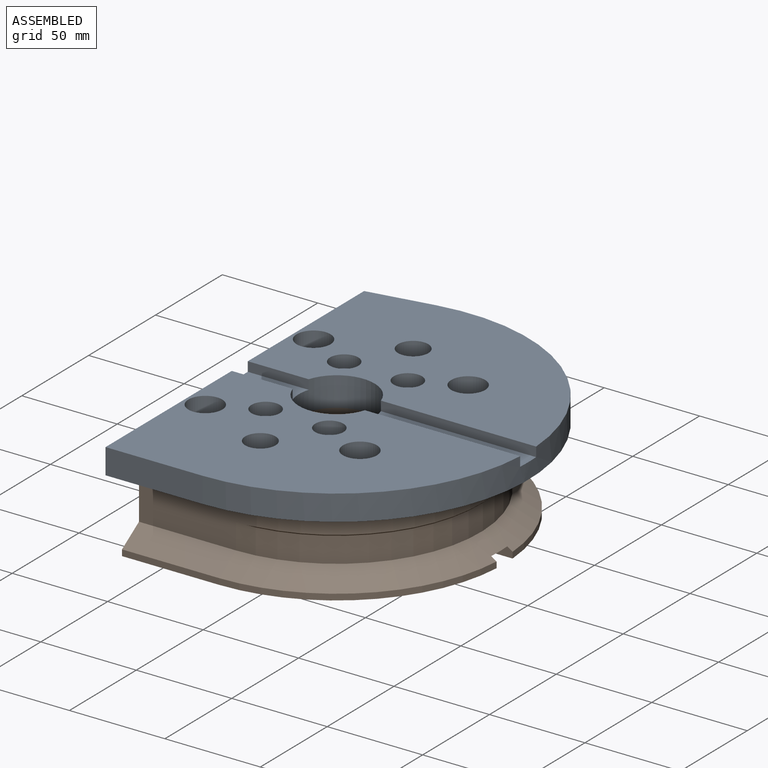
[diagram: assembled view]
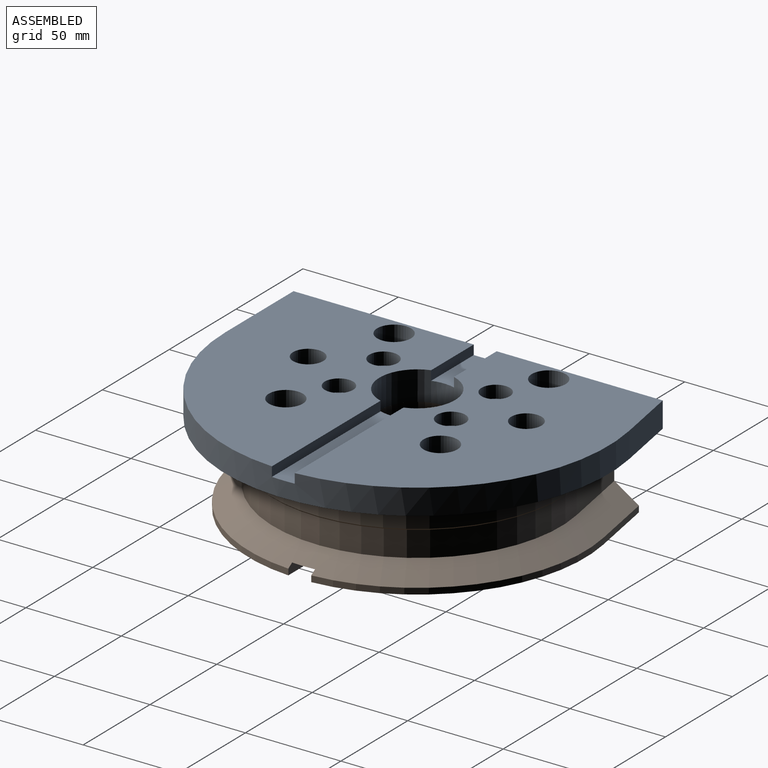
[diagram: assembled view, second angle]
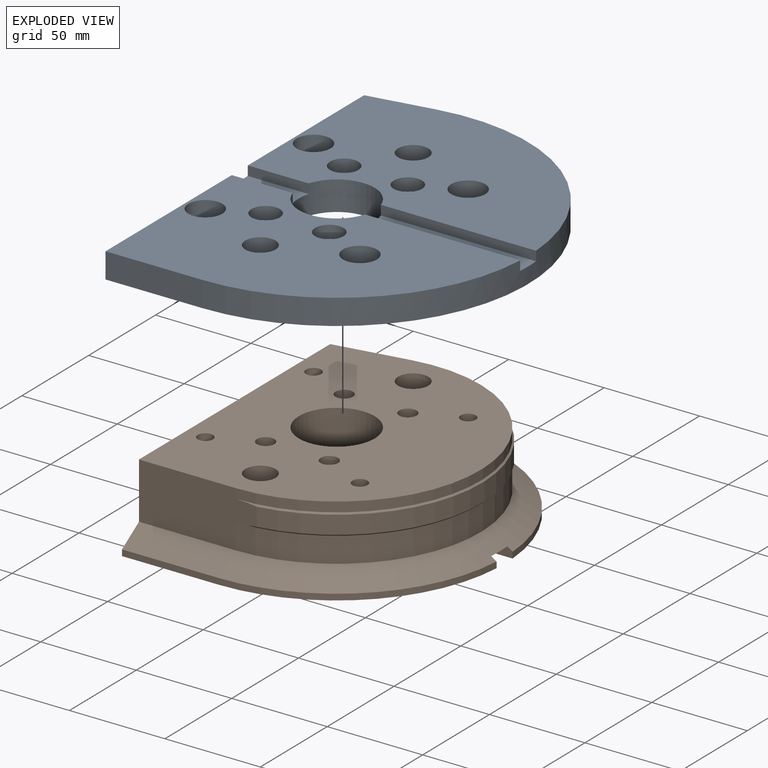
[diagram: exploded view]
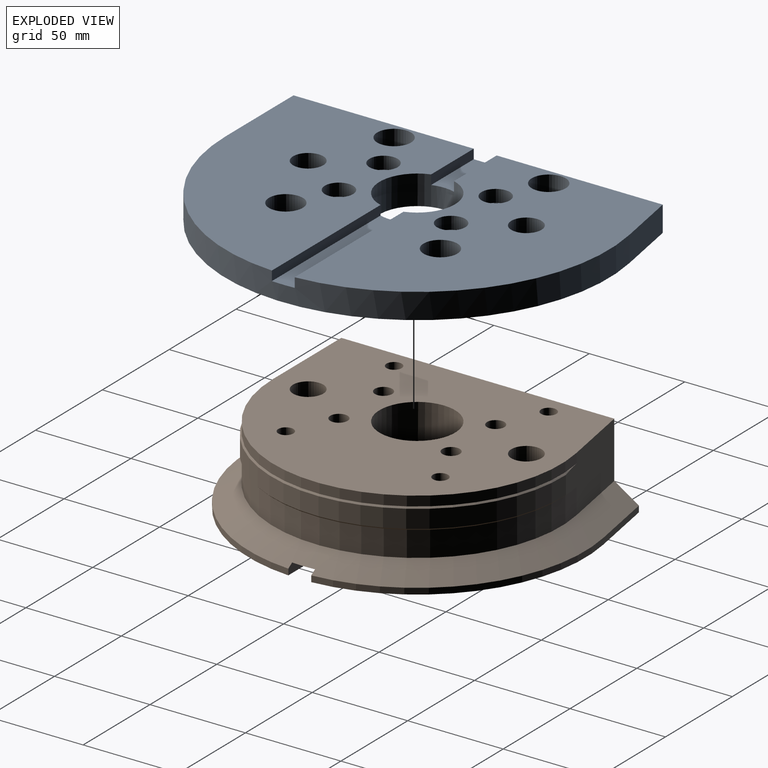
[diagram: exploded view, second angle]
ASSEMBLY  parts=2 mates=2
PART A: 44 faces, bbox 151.2x200.8x15.4 mm
  f0: cylinder r=4.56mm len=9.12mm, axis (0,0,1), area 252.5mm2, adj f15,f42
  f1: cylinder r=4.56mm len=9.12mm, axis (0,0,1), area 252.5mm2, adj f15,f40
  f2: cylinder r=4.56mm len=9.12mm, axis (0,0,1), area 252.5mm2, adj f15,f38
  f3: cylinder r=4.56mm len=9.12mm, axis (0,0,1), area 252.5mm2, adj f15,f36
  f4: cylinder r=5.58mm len=11.15mm, axis (0,0,1), area 184.2mm2, adj f15,f34
  f5: cylinder r=5.58mm len=11.15mm, axis (0,0,1), area 184.2mm2, adj f15,f32
  f6: cylinder r=5.58mm len=11.15mm, axis (0,0,1), area 184.2mm2, adj f15,f30
  f7: cylinder r=5.58mm len=11.15mm, axis (0,0,1), area 184.2mm2, adj f15,f28
  f8: plane 193.4x15.42mm, normal (-1,0,0), area 2818.2mm2, adj f11,f12,f13,f14,f15,f18,f19,f21
  f9: cylinder r=100.41mm len=200.81mm, axis (0,0,-1), area 4388.4mm2, adj f11,f12,f13,f14,f19,f25,f26,f27
  f10: cylinder r=19.85mm len=39.7mm, axis (0,0,-1), area 1801.1mm2, adj f11,f14,f15,f22,f23,f24,f25,f26
  f11: plane 151.03x94.41mm, normal (0,0,1), area 10687.8mm2, adj f8,f9,f10,f12,f17,f23,f26,f31
  f12: plane 50.8x13.36mm, normal (0,-1,0), area 678.7mm2, adj f8,f9,f11,f19
  f13: plane 33.36x13.36mm, normal (-0.17,0.98,0), area 452.6mm2, adj f8,f9,f14,f19
  f14: plane 151.03x94.41mm, normal (0,0,1), area 10529.9mm2, adj f8,f9,f10,f13,f16,f22,f27,f29
  f15: plane 150.83x126.21mm, normal (0,0,-1), area 14136mm2, adj f0,f1,f2,f3,f4,f5,f6,f7
  f16: cylinder r=7.94mm len=15.88mm, axis (0,0,1), area 768.9mm2, adj f14,f15
  f17: cylinder r=7.94mm len=15.88mm, axis (0,0,1), area 768.9mm2, adj f11,f15
  f18: plane 50.8x2.06mm, normal (0,-1,0), area 104.5mm2, adj f8,f15,f19,f20
  f19: plane 200.81x151.21mm, normal (0,0,-1), area 9457.6mm2, adj f8,f9,f12,f13,f18,f20,f21
  f20: cylinder r=75.41mm len=150.83mm, axis (0,0,1), area 514.5mm2, adj f15,f18,f19,f21
  f21: plane 37.7x6.65mm, normal (-0.17,0.98,0), area 78.8mm2, adj f8,f15,f19,f20
  f22: plane 31.88x5mm, normal (0,-1,0), area 159.5mm2, adj f8,f10,f14,f24
  f23: plane 31.88x5mm, normal (0,1,0), area 159.5mm2, adj f8,f10,f11,f24
  f24: plane 31.88x11.99mm, normal (0,0,1), area 374.7mm2, adj f8,f10,f22,f23
  f25: plane 81.48x11.99mm, normal (0,0,1), area 968.7mm2, adj f9,f10,f26,f27
  f26: plane 81.3x5mm, normal (0,1,0), area 406.8mm2, adj f9,f10,f11,f25
  f27: plane 81.3x5mm, normal (0,-1,0), area 406.8mm2, adj f9,f10,f14,f25
  f28: plane 17.78x17.78mm, normal (0,0,1), area 150.6mm2, adj f7,f29
  f29: cylinder r=8.89mm len=17.78mm, axis (0,0,1), area 567.5mm2, adj f14,f28
  f30: plane 17.78x17.78mm, normal (0,0,1), area 150.6mm2, adj f6,f31
  f31: cylinder r=8.89mm len=17.78mm, axis (0,0,1), area 567.5mm2, adj f11,f30
  f32: plane 17.78x17.78mm, normal (0,0,1), area 150.6mm2, adj f5,f33
  f33: cylinder r=8.89mm len=17.78mm, axis (0,0,1), area 567.5mm2, adj f14,f32
  f34: plane 17.78x17.78mm, normal (0,0,1), area 150.6mm2, adj f4,f35
  f35: cylinder r=8.89mm len=17.78mm, axis (0,0,1), area 567.5mm2, adj f11,f34
  f36: plane 14.83x14.83mm, normal (0,0,1), area 107.5mm2, adj f3,f37
  f37: cylinder r=7.42mm len=14.83mm, axis (0,0,1), area 307.8mm2, adj f11,f36
  f38: plane 14.83x14.83mm, normal (0,0,1), area 107.5mm2, adj f2,f39
  f39: cylinder r=7.42mm len=14.83mm, axis (0,0,1), area 307.8mm2, adj f11,f38
  f40: plane 14.83x14.83mm, normal (0,0,1), area 107.5mm2, adj f1,f41
  f41: cylinder r=7.42mm len=14.83mm, axis (0,0,1), area 307.8mm2, adj f14,f40
  f42: plane 14.83x14.83mm, normal (0,0,1), area 107.5mm2, adj f0,f43
  f43: cylinder r=7.42mm len=14.83mm, axis (0,0,1), area 307.8mm2, adj f14,f42
PART B: 35 faces, bbox 138.9x176.2x40.9 mm
  f0: plane 138.71x82.12mm, normal (0,0,-1), area 8763.6mm2, adj f1,f3,f4,f6,f19,f21,f24,f25
  f1: plane 35.5x6.26mm, normal (-0.17,0.98,0), area 114.4mm2, adj f0,f2,f4,f6
  f2: plane 37.7x19.16mm, normal (-0.09,0.54,0.84), area 563mm2, adj f1,f4,f7,f13
  f3: cylinder r=19.85mm len=40.89mm, axis (0,0,-1), area 4978.5mm2, adj f0,f5,f15,f29,f30,f31,f32,f33
  f4: plane 168.63x40.89mm, normal (-1,0,0), area 5976mm2, adj f0,f1,f2,f5,f12,f13,f15,f16
  f5: plane 138.71x82.12mm, normal (0,0,-1), area 8929.1mm2, adj f3,f4,f16,f18,f20,f22,f23,f26
  f6: cylinder r=88.11mm len=103.21mm, axis (0,0,1), area 469.2mm2, adj f0,f1,f7,f31
  f7: cone r=75.41mm half-angle=57deg, axis (0,0,-1), area 4066.6mm2, adj f2,f6,f11,f17,f18,f29,f30,f31
  f8: cylinder r=76.2mm len=151.61mm, axis (0,0,1), area 2198mm2, adj f9,f10,f12,f13
  f9: cone r=76.2mm half-angle=45deg, axis (0,0,1), area 263.7mm2, adj f8,f11,f12,f13
  f10: cone r=75.41mm half-angle=45deg, axis (0,0,-1), area 263.7mm2, adj f8,f12,f13,f14
  f11: cylinder r=75.41mm len=150.83mm, axis (0,0,-1), area 3318.9mm2, adj f7,f9,f12,f13
  f12: plane 61.74x29.46mm, normal (0,-1,0), area 1612.3mm2, adj f4,f8,f9,f10,f11,f14,f15,f17
  f13: plane 48.47x29.46mm, normal (-0.17,0.98,0), area 1243.6mm2, adj f2,f4,f8,f9,f10,f11,f14,f15
  f14: cylinder r=75.41mm len=150.83mm, axis (0,0,-1), area 1273.6mm2, adj f10,f12,f13,f15
  f15: plane 150.83x126.21mm, normal (0,0,1), area 14328.1mm2, adj f3,f4,f12,f13,f14,f19,f20,f21
  f16: plane 50.8x3.18mm, normal (0,-1,0), area 161.3mm2, adj f4,f5,f17,f18
  f17: plane 50.8x12.7mm, normal (0,-0.54,0.84), area 769.5mm2, adj f4,f7,f12,f16
  f18: cylinder r=88.11mm len=87.91mm, axis (0,0,1), area 420.4mm2, adj f5,f7,f16,f30
  f19: cylinder r=4.56mm len=40.89mm, axis (0,0,1), area 1171.5mm2, adj f0,f15
  f20: cylinder r=3.98mm len=40.89mm, axis (0,0,1), area 1021.4mm2, adj f5,f15
  f21: cylinder r=4.56mm len=40.89mm, axis (0,0,1), area 1171.5mm2, adj f0,f15
  f22: cylinder r=4.56mm len=40.89mm, axis (0,0,1), area 1171.5mm2, adj f5,f15
  f23: cylinder r=4.56mm len=40.89mm, axis (0,0,1), area 1171.5mm2, adj f5,f15
  f24: cylinder r=7.94mm len=40.89mm, axis (0,0,1), area 2039.5mm2, adj f0,f15
  f25: cylinder r=3.98mm len=40.89mm, axis (0,0,1), area 1021.4mm2, adj f0,f15
  f26: cylinder r=3.98mm len=40.89mm, axis (0,0,1), area 1021.4mm2, adj f5,f15
  f27: cylinder r=3.98mm len=40.89mm, axis (0,0,1), area 1021.4mm2, adj f0,f15
  f28: cylinder r=7.94mm len=40.89mm, axis (0,0,1), area 2039.5mm2, adj f5,f15
  f29: plane 66.38x11.99mm, normal (0,0,-1), area 787.5mm2, adj f3,f7,f30,f31
  f30: plane 68.99x5.01mm, normal (0,1,0), area 342.6mm2, adj f3,f5,f7,f18,f29
  f31: plane 68.99x5.01mm, normal (0,-1,0), area 342.6mm2, adj f0,f3,f6,f7,f29
  f32: plane 31.88x5mm, normal (0,-1,0), area 159.5mm2, adj f0,f3,f4,f34
  f33: plane 31.88x5mm, normal (0,1,0), area 159.5mm2, adj f3,f4,f5,f34
  f34: plane 31.88x11.99mm, normal (0,0,-1), area 374.7mm2, adj f3,f4,f32,f33
PLACE A at identity
PLACE B t=(0,0,-40.89)mm
MATE slider B.f3 <-> A.f10  axis (0,0,1) through (0,0,0)mm
MATE fastened A.f15 <-> B.f15  axis (0,0,1) through (-50.8,-75.41,0)mm
